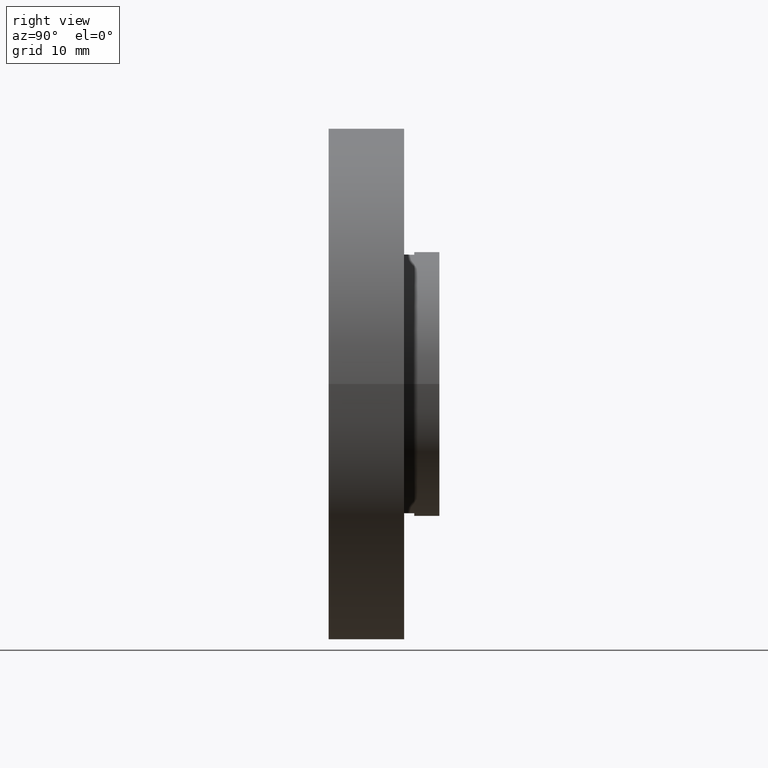
[diagram: clean part render]
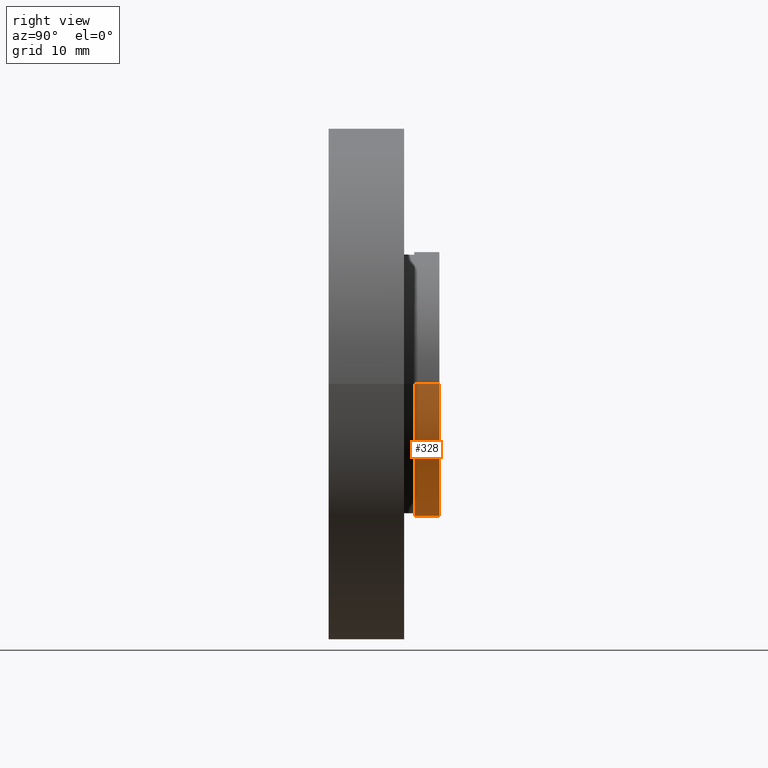
[diagram: same view with one face highlighted and labeled with its STEP entity id]
A machine part, right view. The second image highlights one B-rep face of the part: STEP entity #328.
In plain terms, the highlighted cylindrical surface (partial cylindrical patch) has radius 13.16 mm, axis along (-0, 1, -0).
Its self-contained STEP definition (entity closure, byte-faithful):
#11 = ORIENTED_EDGE ( 'NONE', *, *, #431, .F. ) ;
#20 = AXIS2_PLACEMENT_3D ( 'NONE', #575, #280, #404 ) ;
#33 = DIRECTION ( 'NONE',  ( -1.000000000000000000, -1.318178933113075200E-016, 0.0000000000000000000 ) ) ;
#47 = CYLINDRICAL_SURFACE ( 'NONE', #20, 13.15999999999999800 ) ;
#77 = CARTESIAN_POINT ( 'NONE',  ( -13.15999999999999800, 16.88601823708207700, 0.0000000000000000000 ) ) ;
#90 = DIRECTION ( 'NONE',  ( -1.224646799147351000E-016, 1.000000000000000000, -0.0000000000000000000 ) ) ;
#100 = VERTEX_POINT ( 'NONE', #134 ) ;
#134 = CARTESIAN_POINT ( 'NONE',  ( 13.16000000000000200, 10.99999999999999800, 1.611635187677917100E-015 ) ) ;
#158 = VERTEX_POINT ( 'NONE', #610 ) ;
#173 = CARTESIAN_POINT ( 'NONE',  ( 13.15999999999999800, 16.88601823708207700, 1.611635187677916700E-015 ) ) ;
#188 = EDGE_CURVE ( 'NONE', #269, #252, #405, .T. ) ;
#192 = EDGE_CURVE ( 'NONE', #269, #100, #429, .T. ) ;
#203 = DIRECTION ( 'NONE',  ( -1.224646799147351000E-016, 1.000000000000000000, -0.0000000000000000000 ) ) ;
#212 = VECTOR ( 'NONE', #203, 1000.000000000000000 ) ;
#235 = DIRECTION ( 'NONE',  ( -1.224646799147351000E-016, 1.000000000000000000, -0.0000000000000000000 ) ) ;
#252 = VERTEX_POINT ( 'NONE', #284 ) ;
#269 = VERTEX_POINT ( 'NONE', #442 ) ;
#280 = DIRECTION ( 'NONE',  ( -1.224646799147351000E-016, 1.000000000000000000, -0.0000000000000000000 ) ) ;
#284 = CARTESIAN_POINT ( 'NONE',  ( -13.15999999999999700, 8.499999999999996400, 0.0000000000000000000 ) ) ;
#287 = ORIENTED_EDGE ( 'NONE', *, *, #516, .T. ) ;
#320 = AXIS2_PLACEMENT_3D ( 'NONE', #427, #430, #374 ) ;
#328 = ADVANCED_FACE ( 'NONE', ( #621 ), #47, .T. ) ;
#350 = CIRCLE ( 'NONE', #397, 13.16000000000000000 ) ;
#366 = VECTOR ( 'NONE', #90, 1000.000000000000000 ) ;
#374 = DIRECTION ( 'NONE',  ( -1.000000000000000000, -1.318178933113075500E-016, 0.0000000000000000000 ) ) ;
#391 = ORIENTED_EDGE ( 'NONE', *, *, #188, .T. ) ;
#397 = AXIS2_PLACEMENT_3D ( 'NONE', #510, #235, #33 ) ;
#403 = ORIENTED_EDGE ( 'NONE', *, *, #192, .F. ) ;
#404 = DIRECTION ( 'NONE',  ( -1.000000000000000000, 0.0000000000000000000, 0.0000000000000000000 ) ) ;
#405 = CIRCLE ( 'NONE', #320, 13.15999999999999800 ) ;
#427 = CARTESIAN_POINT ( 'NONE',  ( 1.026991039163387700E-015, 8.499999999999998200, 0.0000000000000000000 ) ) ;
#429 = LINE ( 'NONE', #173, #366 ) ;
#430 = DIRECTION ( 'NONE',  ( -1.224646799147351000E-016, 1.000000000000000000, -0.0000000000000000000 ) ) ;
#431 = EDGE_CURVE ( 'NONE', #100, #158, #350, .T. ) ;
#442 = CARTESIAN_POINT ( 'NONE',  ( 13.16000000000000200, 8.500000000000000000, 1.611635187677917100E-015 ) ) ;
#493 = LINE ( 'NONE', #77, #212 ) ;
#500 = EDGE_LOOP ( 'NONE', ( #403, #391, #287, #11 ) ) ;
#510 = CARTESIAN_POINT ( 'NONE',  ( 7.208293393765502500E-016, 10.99999999999999600, 0.0000000000000000000 ) ) ;
#516 = EDGE_CURVE ( 'NONE', #252, #158, #493, .T. ) ;
#575 = CARTESIAN_POINT ( 'NONE',  ( 0.0000000000000000000, 16.88601823708207700, 0.0000000000000000000 ) ) ;
#610 = CARTESIAN_POINT ( 'NONE',  ( -13.16000000000000000, 10.99999999999999500, 0.0000000000000000000 ) ) ;
#621 = FACE_OUTER_BOUND ( 'NONE', #500, .T. ) ;